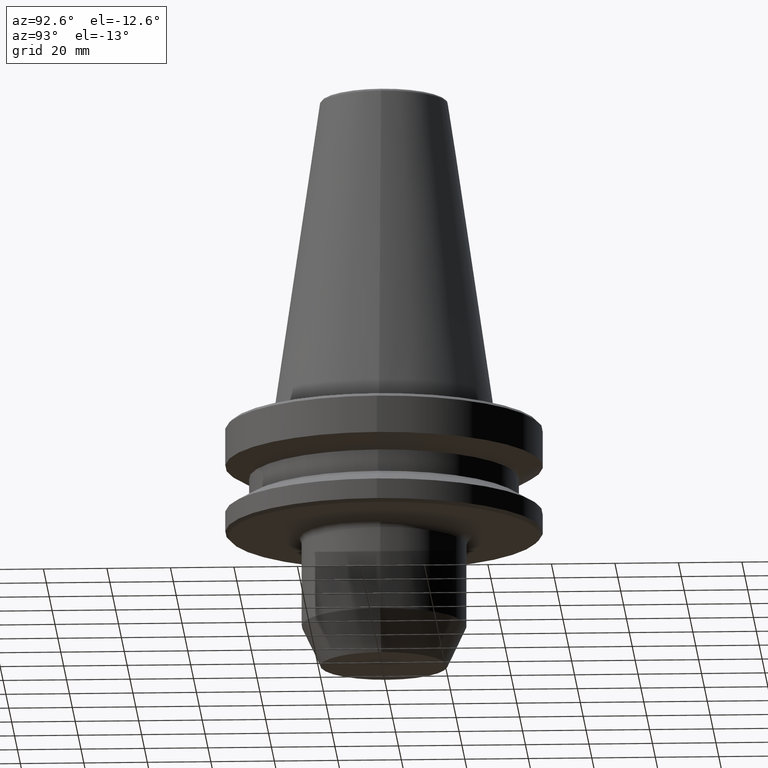
[diagram: clean part render]
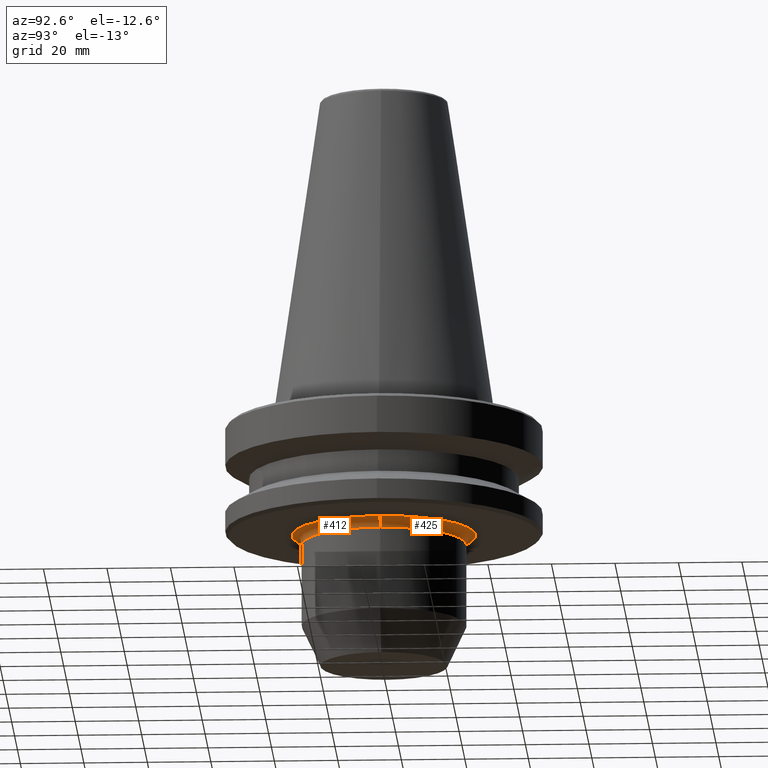
[diagram: same view with one multi-face feature highlighted, each face labeled with its STEP entity id]
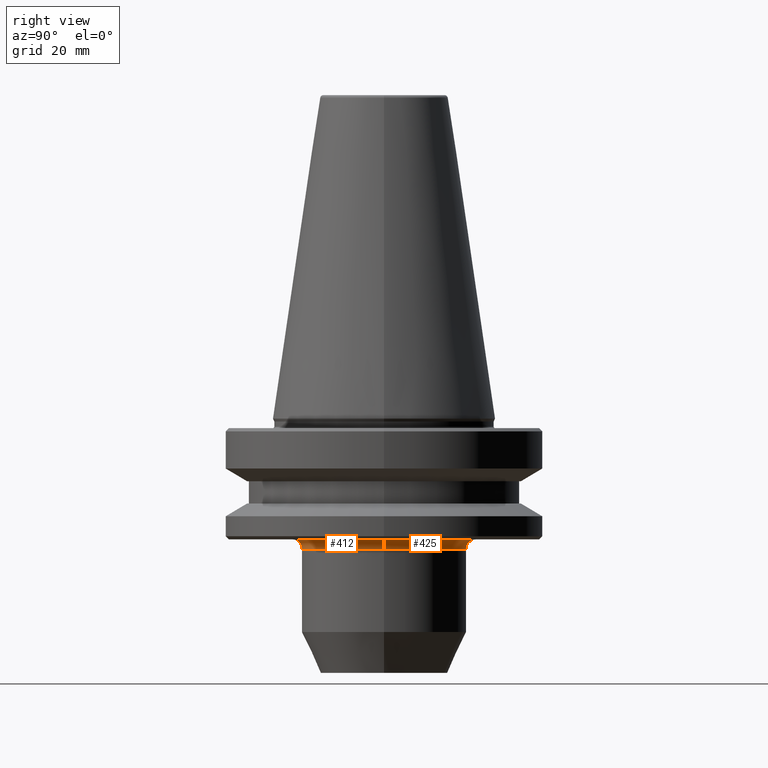
[diagram: same view with one multi-face feature highlighted, each face labeled with its STEP entity id]
A machine part, auxiliary view. The highlighted faces form ONE feature: a constant-radius fillet chain: 2 tangent blend faces with common blend radius 3 mm. The faces share edges in the B-rep.
A second angle (right view) of the same feature is appended — it is thin or edge-on in the first view.
Their STEP definitions:
[1] entity #425 (Torus):
#2 = AXIS2_PLACEMENT_3D ( 'NONE', #921, #999, #465 ) ;
#27 = CARTESIAN_POINT ( 'NONE',  ( 25.99999999999769100, 0.0000000000000000000, -41.00000000000194000 ) ) ;
#63 = EDGE_CURVE ( 'NONE', #701, #862, #782, .T. ) ;
#85 = EDGE_CURVE ( 'NONE', #423, #772, #201, .T. ) ;
#126 = ORIENTED_EDGE ( 'NONE', *, *, #63, .F. ) ;
#159 = CIRCLE ( 'NONE', #698, 3.000000000000058200 ) ;
#165 = CARTESIAN_POINT ( 'NONE',  ( 0.0000000000000000000, 0.0000000000000000000, -38.00000000000188300 ) ) ;
#201 = CIRCLE ( 'NONE', #911, 25.99999999999769100 ) ;
#232 = AXIS2_PLACEMENT_3D ( 'NONE', #668, #239, #836 ) ;
#233 = DIRECTION ( 'NONE',  ( -0.0000000000000000000, -0.0000000000000000000, 1.000000000000000000 ) ) ;
#239 = DIRECTION ( 'NONE',  ( 0.0000000000000000000, -1.000000000000000000, 0.0000000000000000000 ) ) ;
#288 = ORIENTED_EDGE ( 'NONE', *, *, #440, .T. ) ;
#312 = DIRECTION ( 'NONE',  ( 1.224646799147353200E-016, 1.000000000000000000, 0.0000000000000000000 ) ) ;
#330 = EDGE_CURVE ( 'NONE', #862, #772, #159, .T. ) ;
#379 = CARTESIAN_POINT ( 'NONE',  ( -28.99999999999769400, 3.551475717527042000E-015, -38.00000000000187600 ) ) ;
#403 = DIRECTION ( 'NONE',  ( 1.000000000000000000, 0.0000000000000000000, 0.0000000000000000000 ) ) ;
#415 = AXIS2_PLACEMENT_3D ( 'NONE', #165, #607, #434 ) ;
#423 = VERTEX_POINT ( 'NONE', #27 ) ;
#425 = ADVANCED_FACE ( 'NONE', ( #474 ), #900, .F. ) ;
#426 = CARTESIAN_POINT ( 'NONE',  ( 0.0000000000000000000, 0.0000000000000000000, -41.00000000000194000 ) ) ;
#434 = DIRECTION ( 'NONE',  ( 1.000000000000000000, 0.0000000000000000000, 0.0000000000000000000 ) ) ;
#440 = EDGE_CURVE ( 'NONE', #701, #423, #920, .T. ) ;
#465 = DIRECTION ( 'NONE',  ( 1.000000000000000000, 0.0000000000000000000, 0.0000000000000000000 ) ) ;
#474 = FACE_OUTER_BOUND ( 'NONE', #506, .T. ) ;
#506 = EDGE_LOOP ( 'NONE', ( #569, #126, #288, #837 ) ) ;
#569 = ORIENTED_EDGE ( 'NONE', *, *, #330, .F. ) ;
#607 = DIRECTION ( 'NONE',  ( -0.0000000000000000000, -0.0000000000000000000, 1.000000000000000000 ) ) ;
#612 = DIRECTION ( 'NONE',  ( -1.000000000000000000, 1.224646799147352500E-016, 0.0000000000000000000 ) ) ;
#668 = CARTESIAN_POINT ( 'NONE',  ( 28.99999999999769400, 0.0000000000000000000, -41.00000000000192600 ) ) ;
#672 = CARTESIAN_POINT ( 'NONE',  ( 28.99999999999769400, 0.0000000000000000000, -38.00000000000187600 ) ) ;
#698 = AXIS2_PLACEMENT_3D ( 'NONE', #830, #312, #612 ) ;
#701 = VERTEX_POINT ( 'NONE', #672 ) ;
#719 = CARTESIAN_POINT ( 'NONE',  ( -25.99999999999769100, 3.184081677782835400E-015, -41.00000000000194000 ) ) ;
#772 = VERTEX_POINT ( 'NONE', #719 ) ;
#782 = CIRCLE ( 'NONE', #415, 28.99999999999769400 ) ;
#830 = CARTESIAN_POINT ( 'NONE',  ( -28.99999999999769400, 3.551475717527042000E-015, -41.00000000000192600 ) ) ;
#836 = DIRECTION ( 'NONE',  ( 0.0000000000000000000, 0.0000000000000000000, -1.000000000000000000 ) ) ;
#837 = ORIENTED_EDGE ( 'NONE', *, *, #85, .T. ) ;
#862 = VERTEX_POINT ( 'NONE', #379 ) ;
#900 = TOROIDAL_SURFACE ( 'NONE', #2, 28.99999999999769400, 3.000000000000058200 ) ;
#911 = AXIS2_PLACEMENT_3D ( 'NONE', #426, #233, #403 ) ;
#920 = CIRCLE ( 'NONE', #232, 3.000000000000058200 ) ;
#921 = CARTESIAN_POINT ( 'NONE',  ( 0.0000000000000000000, 0.0000000000000000000, -41.00000000000192600 ) ) ;
#999 = DIRECTION ( 'NONE',  ( -0.0000000000000000000, -0.0000000000000000000, 1.000000000000000000 ) ) ;
[2] entity #412 (Torus):
#27 = CARTESIAN_POINT ( 'NONE',  ( 25.99999999999769100, 0.0000000000000000000, -41.00000000000194000 ) ) ;
#30 = AXIS2_PLACEMENT_3D ( 'NONE', #383, #684, #361 ) ;
#67 = ORIENTED_EDGE ( 'NONE', *, *, #330, .T. ) ;
#122 = FACE_OUTER_BOUND ( 'NONE', #882, .T. ) ;
#129 = AXIS2_PLACEMENT_3D ( 'NONE', #903, #596, #577 ) ;
#130 = AXIS2_PLACEMENT_3D ( 'NONE', #930, #539, #847 ) ;
#134 = ORIENTED_EDGE ( 'NONE', *, *, #440, .F. ) ;
#147 = EDGE_CURVE ( 'NONE', #862, #701, #681, .T. ) ;
#159 = CIRCLE ( 'NONE', #698, 3.000000000000058200 ) ;
#232 = AXIS2_PLACEMENT_3D ( 'NONE', #668, #239, #836 ) ;
#239 = DIRECTION ( 'NONE',  ( 0.0000000000000000000, -1.000000000000000000, 0.0000000000000000000 ) ) ;
#302 = TOROIDAL_SURFACE ( 'NONE', #130, 28.99999999999769400, 3.000000000000058200 ) ;
#312 = DIRECTION ( 'NONE',  ( 1.224646799147353200E-016, 1.000000000000000000, 0.0000000000000000000 ) ) ;
#330 = EDGE_CURVE ( 'NONE', #862, #772, #159, .T. ) ;
#361 = DIRECTION ( 'NONE',  ( 1.000000000000000000, 0.0000000000000000000, 0.0000000000000000000 ) ) ;
#377 = ORIENTED_EDGE ( 'NONE', *, *, #541, .T. ) ;
#379 = CARTESIAN_POINT ( 'NONE',  ( -28.99999999999769400, 3.551475717527042000E-015, -38.00000000000187600 ) ) ;
#383 = CARTESIAN_POINT ( 'NONE',  ( 0.0000000000000000000, 0.0000000000000000000, -41.00000000000194000 ) ) ;
#412 = ADVANCED_FACE ( 'NONE', ( #122 ), #302, .F. ) ;
#423 = VERTEX_POINT ( 'NONE', #27 ) ;
#440 = EDGE_CURVE ( 'NONE', #701, #423, #920, .T. ) ;
#539 = DIRECTION ( 'NONE',  ( -0.0000000000000000000, -0.0000000000000000000, 1.000000000000000000 ) ) ;
#541 = EDGE_CURVE ( 'NONE', #772, #423, #678, .T. ) ;
#577 = DIRECTION ( 'NONE',  ( 1.000000000000000000, 0.0000000000000000000, 0.0000000000000000000 ) ) ;
#592 = ORIENTED_EDGE ( 'NONE', *, *, #147, .F. ) ;
#596 = DIRECTION ( 'NONE',  ( -0.0000000000000000000, -0.0000000000000000000, 1.000000000000000000 ) ) ;
#612 = DIRECTION ( 'NONE',  ( -1.000000000000000000, 1.224646799147352500E-016, 0.0000000000000000000 ) ) ;
#668 = CARTESIAN_POINT ( 'NONE',  ( 28.99999999999769400, 0.0000000000000000000, -41.00000000000192600 ) ) ;
#672 = CARTESIAN_POINT ( 'NONE',  ( 28.99999999999769400, 0.0000000000000000000, -38.00000000000187600 ) ) ;
#678 = CIRCLE ( 'NONE', #30, 25.99999999999769100 ) ;
#681 = CIRCLE ( 'NONE', #129, 28.99999999999769400 ) ;
#684 = DIRECTION ( 'NONE',  ( -0.0000000000000000000, -0.0000000000000000000, 1.000000000000000000 ) ) ;
#698 = AXIS2_PLACEMENT_3D ( 'NONE', #830, #312, #612 ) ;
#701 = VERTEX_POINT ( 'NONE', #672 ) ;
#719 = CARTESIAN_POINT ( 'NONE',  ( -25.99999999999769100, 3.184081677782835400E-015, -41.00000000000194000 ) ) ;
#772 = VERTEX_POINT ( 'NONE', #719 ) ;
#830 = CARTESIAN_POINT ( 'NONE',  ( -28.99999999999769400, 3.551475717527042000E-015, -41.00000000000192600 ) ) ;
#836 = DIRECTION ( 'NONE',  ( 0.0000000000000000000, 0.0000000000000000000, -1.000000000000000000 ) ) ;
#847 = DIRECTION ( 'NONE',  ( 1.000000000000000000, 0.0000000000000000000, 0.0000000000000000000 ) ) ;
#862 = VERTEX_POINT ( 'NONE', #379 ) ;
#882 = EDGE_LOOP ( 'NONE', ( #592, #67, #377, #134 ) ) ;
#903 = CARTESIAN_POINT ( 'NONE',  ( 0.0000000000000000000, 0.0000000000000000000, -38.00000000000188300 ) ) ;
#920 = CIRCLE ( 'NONE', #232, 3.000000000000058200 ) ;
#930 = CARTESIAN_POINT ( 'NONE',  ( 0.0000000000000000000, 0.0000000000000000000, -41.00000000000192600 ) ) ;